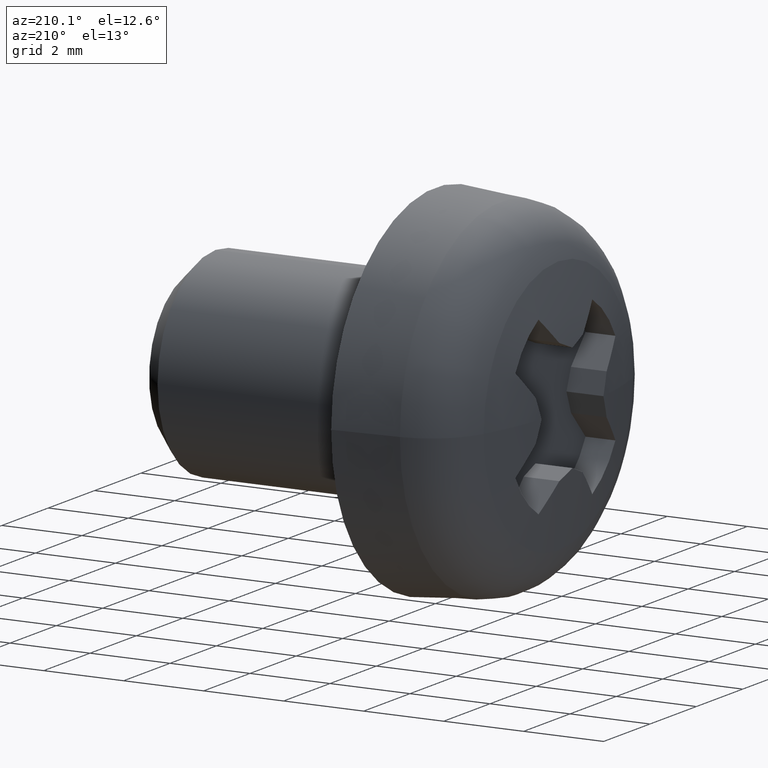
[diagram: clean part render]
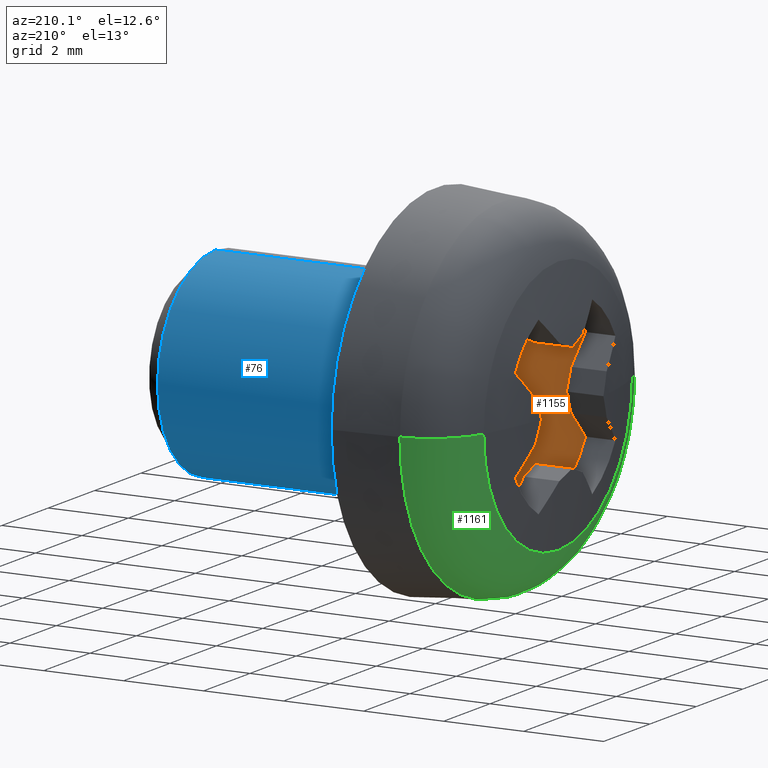
[diagram: same view with three faces highlighted in distinct colors, each labeled with its STEP entity id]
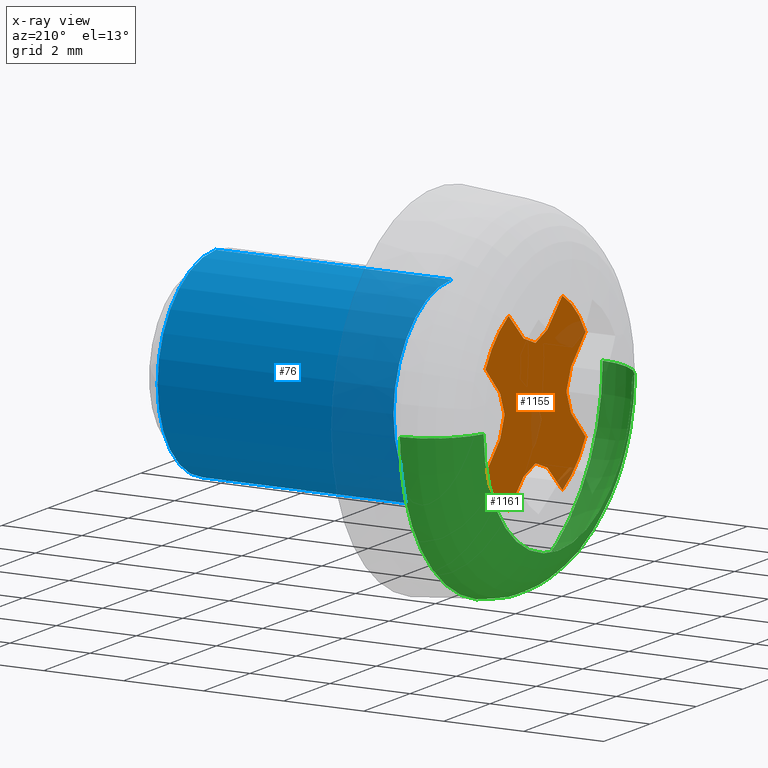
[diagram: x-ray of the same camera — body ghosted, the three highlighted faces saturated]
A machine part, auxiliary view with three faces highlighted in distinct colors.
The next image is the same camera in x-ray (body ghosted, the three faces saturated) — at least one of them is partly hidden behind the body in this view.
Their STEP definitions:

[orange] entity #1155 — the highlighted planar face has unit normal (1, 0, 0).
#1 = CARTESIAN_POINT ( 'NONE',  ( -2.500000000000000000, 1.159479238436129700, 2.158265019787024100 ) ) ;
#16 = ORIENTED_EDGE ( 'NONE', *, *, #48, .F. ) ;
#18 = VECTOR ( 'NONE', #199, 1000.000000000000100 ) ;
#28 = DIRECTION ( 'NONE',  ( 0.0000000000000000000, 0.0000000000000000000, -1.000000000000000000 ) ) ;
#31 = EDGE_CURVE ( 'NONE', #280, #181, #688, .T. ) ;
#32 = EDGE_CURVE ( 'NONE', #1241, #542, #1225, .T. ) ;
#48 = EDGE_CURVE ( 'NONE', #994, #922, #1189, .T. ) ;
#51 = CARTESIAN_POINT ( 'NONE',  ( -2.500000000000000000, -0.5093083929227741900, -1.530402332565709200 ) ) ;
#62 = CIRCLE ( 'NONE', #198, 2.450000000000145400 ) ;
#78 = VERTEX_POINT ( 'NONE', #88 ) ;
#88 = CARTESIAN_POINT ( 'NONE',  ( -2.500000000000000000, -1.159479238436081700, 2.158265019787049900 ) ) ;
#94 = ORIENTED_EDGE ( 'NONE', *, *, #232, .F. ) ;
#96 = DIRECTION ( 'NONE',  ( 0.0000000000000000000, -0.9335804264972001900, 0.3583679495453044300 ) ) ;
#100 = CARTESIAN_POINT ( 'NONE',  ( -2.500000000000000000, 1.334897157780971000, -4.235164736271501700E-019 ) ) ;
#113 = EDGE_CURVE ( 'NONE', #841, #78, #657, .T. ) ;
#126 = LINE ( 'NONE', #291, #1139 ) ;
#128 = DIRECTION ( 'NONE',  ( 0.0000000000000000000, 0.9335804264972001900, -0.3583679495453044300 ) ) ;
#137 = EDGE_LOOP ( 'NONE', ( #554, #1031, #491, #997, #1228, #16, #877, #331, #1138, #1147, #976, #744, #397, #348, #1181, #874, #216, #1195, #223, #94 ) ) ;
#145 = CARTESIAN_POINT ( 'NONE',  ( -2.500000000000000000, 0.5093083929209955000, -1.530402332566300800 ) ) ;
#147 = VECTOR ( 'NONE', #584, 1000.000000000000000 ) ;
#148 = CARTESIAN_POINT ( 'NONE',  ( -2.500000000000000000, 0.0000000000000000000, -0.0000000000000000000 ) ) ;
#152 = CARTESIAN_POINT ( 'NONE',  ( -2.500000000000000000, 0.5093083929209955000, -1.530402332566300800 ) ) ;
#181 = VERTEX_POINT ( 'NONE', #51 ) ;
#198 = AXIS2_PLACEMENT_3D ( 'NONE', #148, #823, #249 ) ;
#199 = DIRECTION ( 'NONE',  ( -0.0000000000000000000, -0.6946583704602968800, 0.7193398003373960800 ) ) ;
#211 = CARTESIAN_POINT ( 'NONE',  ( -2.500000000000000000, -0.5093083929227741900, -1.530402332565709200 ) ) ;
#216 = ORIENTED_EDGE ( 'NONE', *, *, #450, .F. ) ;
#217 = CARTESIAN_POINT ( 'NONE',  ( -2.500000000000000000, 2.158265019787062300, 1.159479238436059300 ) ) ;
#223 = ORIENTED_EDGE ( 'NONE', *, *, #592, .F. ) ;
#227 = VECTOR ( 'NONE', #253, 1000.000000000000100 ) ;
#228 = DIRECTION ( 'NONE',  ( 1.000000000000000000, 0.0000000000000000000, 0.0000000000000000000 ) ) ;
#232 = EDGE_CURVE ( 'NONE', #542, #752, #1261, .T. ) ;
#249 = DIRECTION ( 'NONE',  ( 0.0000000000000000000, -1.000000000000000000, 3.491481338843133400E-015 ) ) ;
#253 = DIRECTION ( 'NONE',  ( 0.0000000000000000000, 0.7193398003386477500, -0.6946583704590007000 ) ) ;
#271 = LINE ( 'NONE', #870, #18 ) ;
#280 = VERTEX_POINT ( 'NONE', #591 ) ;
#282 = CARTESIAN_POINT ( 'NONE',  ( -2.500000000000000000, -1.334897157780971000, 4.235164736271501700E-019 ) ) ;
#283 = EDGE_CURVE ( 'NONE', #181, #1241, #429, .T. ) ;
#291 = CARTESIAN_POINT ( 'NONE',  ( -2.500000000000000000, -1.530402332566302500, -0.5093083929209901700 ) ) ;
#307 = LINE ( 'NONE', #1182, #1054 ) ;
#319 = DIRECTION ( 'NONE',  ( 0.0000000000000000000, 1.000000000000000000, -1.047444401652939800E-014 ) ) ;
#321 = DIRECTION ( 'NONE',  ( 0.0000000000000000000, 0.7193398003373985300, 0.6946583704602944400 ) ) ;
#331 = ORIENTED_EDGE ( 'NONE', *, *, #658, .F. ) ;
#348 = ORIENTED_EDGE ( 'NONE', *, *, #1254, .F. ) ;
#365 = AXIS2_PLACEMENT_3D ( 'NONE', #1024, #666, #854 ) ;
#369 = EDGE_CURVE ( 'NONE', #665, #994, #494, .T. ) ;
#378 = CARTESIAN_POINT ( 'NONE',  ( -2.500000000000000000, -1.530402332565711000, 0.5093083929227688600 ) ) ;
#379 = VERTEX_POINT ( 'NONE', #975 ) ;
#393 = DIRECTION ( 'NONE',  ( -0.0000000000000000000, -0.3583679495453049300, 0.9335804264971999700 ) ) ;
#397 = ORIENTED_EDGE ( 'NONE', *, *, #1239, .F. ) ;
#399 = CARTESIAN_POINT ( 'NONE',  ( -2.500000000000000000, -4.661192032140625300E-015, -1.334897157780971000 ) ) ;
#417 = CARTESIAN_POINT ( 'NONE',  ( -2.500000000000000000, 0.0000000000000000000, 0.0000000000000000000 ) ) ;
#427 = CARTESIAN_POINT ( 'NONE',  ( -2.500000000000000000, 0.0000000000000000000, 0.0000000000000000000 ) ) ;
#429 = LINE ( 'NONE', #399, #647 ) ;
#443 = DIRECTION ( 'NONE',  ( 0.0000000000000000000, -0.9335804264972037400, -0.3583679495452951600 ) ) ;
#446 = CARTESIAN_POINT ( 'NONE',  ( -2.500000000000000000, -1.334897157782241900, 4.497275487811942400E-015 ) ) ;
#450 = EDGE_CURVE ( 'NONE', #379, #1157, #1247, .T. ) ;
#452 = EDGE_CURVE ( 'NONE', #1178, #962, #933, .T. ) ;
#453 = EDGE_CURVE ( 'NONE', #784, #841, #1187, .T. ) ;
#455 = VECTOR ( 'NONE', #1202, 1000.000000000000000 ) ;
#459 = VERTEX_POINT ( 'NONE', #1180 ) ;
#491 = ORIENTED_EDGE ( 'NONE', *, *, #31, .F. ) ;
#493 = CARTESIAN_POINT ( 'NONE',  ( -2.500000000000000000, -1.634930278594939400E-016, 1.334897157782241900 ) ) ;
#494 = LINE ( 'NONE', #282, #1023 ) ;
#506 = CARTESIAN_POINT ( 'NONE',  ( -2.500000000000000000, -1.530402332565711000, 0.5093083929227688600 ) ) ;
#507 = PLANE ( 'NONE',  #365 ) ;
#517 = CARTESIAN_POINT ( 'NONE',  ( -2.500000000000000000, 0.0000000000000000000, 0.0000000000000000000 ) ) ;
#542 = VERTEX_POINT ( 'NONE', #145 ) ;
#554 = ORIENTED_EDGE ( 'NONE', *, *, #32, .F. ) ;
#560 = CIRCLE ( 'NONE', #663, 2.450000000000145400 ) ;
#561 = VECTOR ( 'NONE', #1173, 1000.000000000000100 ) ;
#584 = DIRECTION ( 'NONE',  ( 0.0000000000000000000, 0.6946583704590083600, 0.7193398003386405300 ) ) ;
#591 = CARTESIAN_POINT ( 'NONE',  ( -2.500000000000000000, -1.159479238436114800, -2.158265019787032100 ) ) ;
#592 = EDGE_CURVE ( 'NONE', #752, #1108, #560, .T. ) ;
#610 = DIRECTION ( 'NONE',  ( 1.000000000000000000, 0.0000000000000000000, 0.0000000000000000000 ) ) ;
#644 = VERTEX_POINT ( 'NONE', #1268 ) ;
#647 = VECTOR ( 'NONE', #831, 1000.000000000000000 ) ;
#655 = VECTOR ( 'NONE', #393, 1000.000000000000000 ) ;
#657 = LINE ( 'NONE', #792, #561 ) ;
#658 = EDGE_CURVE ( 'NONE', #644, #665, #1140, .T. ) ;
#663 = AXIS2_PLACEMENT_3D ( 'NONE', #517, #610, #28 ) ;
#665 = VERTEX_POINT ( 'NONE', #506 ) ;
#666 = DIRECTION ( 'NONE',  ( 1.000000000000000000, 0.0000000000000000000, 0.0000000000000000000 ) ) ;
#688 = LINE ( 'NONE', #211, #958 ) ;
#701 = CARTESIAN_POINT ( 'NONE',  ( -2.500000000000000000, -1.634930278594939400E-016, 1.334897157782241900 ) ) ;
#728 = CARTESIAN_POINT ( 'NONE',  ( -2.500000000000000000, 1.398272906347462200E-014, 1.334897157780971000 ) ) ;
#738 = CIRCLE ( 'NONE', #900, 2.450000000000145400 ) ;
#744 = ORIENTED_EDGE ( 'NONE', *, *, #970, .F. ) ;
#752 = VERTEX_POINT ( 'NONE', #782 ) ;
#754 = CARTESIAN_POINT ( 'NONE',  ( -2.500000000000000000, 1.530402332566306300, 0.5093083929209795100 ) ) ;
#763 = EDGE_CURVE ( 'NONE', #1157, #1178, #966, .T. ) ;
#775 = VECTOR ( 'NONE', #443, 1000.000000000000000 ) ;
#780 = AXIS2_PLACEMENT_3D ( 'NONE', #417, #228, #799 ) ;
#782 = CARTESIAN_POINT ( 'NONE',  ( -2.500000000000000000, 1.159479238436081700, -2.158265019787049900 ) ) ;
#784 = VERTEX_POINT ( 'NONE', #701 ) ;
#792 = CARTESIAN_POINT ( 'NONE',  ( -2.500000000000000000, -0.5093083929209955000, 1.530402332566300800 ) ) ;
#799 = DIRECTION ( 'NONE',  ( 0.0000000000000000000, 0.0000000000000000000, 1.000000000000000000 ) ) ;
#812 = LINE ( 'NONE', #728, #775 ) ;
#823 = DIRECTION ( 'NONE',  ( 1.000000000000000000, 0.0000000000000000000, 0.0000000000000000000 ) ) ;
#831 = DIRECTION ( 'NONE',  ( 0.0000000000000000000, 0.9335804264972011900, 0.3583679495453016600 ) ) ;
#841 = VERTEX_POINT ( 'NONE', #1028 ) ;
#845 = EDGE_CURVE ( 'NONE', #922, #1265, #126, .T. ) ;
#854 = DIRECTION ( 'NONE',  ( 0.0000000000000000000, 0.0000000000000000000, -1.000000000000000000 ) ) ;
#863 = DIRECTION ( 'NONE',  ( 0.0000000000000000000, 0.3583679495453049300, -0.9335804264971999700 ) ) ;
#866 = VECTOR ( 'NONE', #901, 1000.000000000000100 ) ;
#868 = CARTESIAN_POINT ( 'NONE',  ( -2.500000000000000000, 2.158265019787036100, -1.159479238436107200 ) ) ;
#870 = CARTESIAN_POINT ( 'NONE',  ( -2.500000000000000000, 1.530402332565711000, -0.5093083929227688600 ) ) ;
#874 = ORIENTED_EDGE ( 'NONE', *, *, #763, .F. ) ;
#877 = ORIENTED_EDGE ( 'NONE', *, *, #369, .F. ) ;
#892 = VECTOR ( 'NONE', #96, 1000.000000000000000 ) ;
#900 = AXIS2_PLACEMENT_3D ( 'NONE', #427, #1015, #319 ) ;
#901 = DIRECTION ( 'NONE',  ( 0.0000000000000000000, 0.6946583704602968800, -0.7193398003373960800 ) ) ;
#922 = VERTEX_POINT ( 'NONE', #1000 ) ;
#933 = LINE ( 'NONE', #1077, #147 ) ;
#934 = VECTOR ( 'NONE', #128, 1000.000000000000000 ) ;
#958 = VECTOR ( 'NONE', #321, 1000.000000000000000 ) ;
#962 = VERTEX_POINT ( 'NONE', #217 ) ;
#966 = LINE ( 'NONE', #1263, #455 ) ;
#969 = EDGE_CURVE ( 'NONE', #1265, #280, #62, .T. ) ;
#970 = EDGE_CURVE ( 'NONE', #459, #784, #812, .T. ) ;
#975 = CARTESIAN_POINT ( 'NONE',  ( -2.500000000000000000, 1.530402332565711000, -0.5093083929227688600 ) ) ;
#976 = ORIENTED_EDGE ( 'NONE', *, *, #453, .F. ) ;
#994 = VERTEX_POINT ( 'NONE', #446 ) ;
#995 = CARTESIAN_POINT ( 'NONE',  ( -2.500000000000000000, 1.634930278594939400E-016, -1.334897157782241900 ) ) ;
#997 = ORIENTED_EDGE ( 'NONE', *, *, #969, .F. ) ;
#1000 = CARTESIAN_POINT ( 'NONE',  ( -2.500000000000000000, -1.530402332566302500, -0.5093083929209901700 ) ) ;
#1015 = DIRECTION ( 'NONE',  ( 1.000000000000000000, 0.0000000000000000000, 0.0000000000000000000 ) ) ;
#1022 = CIRCLE ( 'NONE', #780, 2.450000000000145400 ) ;
#1023 = VECTOR ( 'NONE', #863, 1000.000000000000000 ) ;
#1024 = CARTESIAN_POINT ( 'NONE',  ( -2.500000000000000000, 0.0000000000000000000, 0.0000000000000000000 ) ) ;
#1028 = CARTESIAN_POINT ( 'NONE',  ( -2.500000000000000000, -0.5093083929209955000, 1.530402332566300800 ) ) ;
#1031 = ORIENTED_EDGE ( 'NONE', *, *, #283, .F. ) ;
#1054 = VECTOR ( 'NONE', #1193, 1000.000000000000100 ) ;
#1055 = EDGE_CURVE ( 'NONE', #78, #644, #1022, .T. ) ;
#1070 = CARTESIAN_POINT ( 'NONE',  ( -2.500000000000000000, 1.334897157780971000, -4.235164736271501700E-019 ) ) ;
#1077 = CARTESIAN_POINT ( 'NONE',  ( -2.500000000000000000, 1.530402332566306300, 0.5093083929209795100 ) ) ;
#1108 = VERTEX_POINT ( 'NONE', #868 ) ;
#1135 = VERTEX_POINT ( 'NONE', #1 ) ;
#1138 = ORIENTED_EDGE ( 'NONE', *, *, #1055, .F. ) ;
#1139 = VECTOR ( 'NONE', #1270, 1000.000000000000100 ) ;
#1140 = LINE ( 'NONE', #378, #866 ) ;
#1147 = ORIENTED_EDGE ( 'NONE', *, *, #113, .F. ) ;
#1149 = FACE_OUTER_BOUND ( 'NONE', #137, .T. ) ;
#1152 = VECTOR ( 'NONE', #1210, 1000.000000000000000 ) ;
#1155 = ADVANCED_FACE ( 'NONE', ( #1149 ), #507, .F. ) ;
#1157 = VERTEX_POINT ( 'NONE', #1070 ) ;
#1159 = CARTESIAN_POINT ( 'NONE',  ( -2.500000000000000000, -4.661192032140625300E-015, -1.334897157780971000 ) ) ;
#1173 = DIRECTION ( 'NONE',  ( 0.0000000000000000000, -0.7193398003386477500, 0.6946583704590007000 ) ) ;
#1178 = VERTEX_POINT ( 'NONE', #754 ) ;
#1180 = CARTESIAN_POINT ( 'NONE',  ( -2.500000000000000000, 0.5093083929227848500, 1.530402332565705700 ) ) ;
#1181 = ORIENTED_EDGE ( 'NONE', *, *, #452, .F. ) ;
#1182 = CARTESIAN_POINT ( 'NONE',  ( -2.500000000000000000, 0.5093083929227848500, 1.530402332565705700 ) ) ;
#1187 = LINE ( 'NONE', #493, #892 ) ;
#1189 = LINE ( 'NONE', #1272, #1152 ) ;
#1193 = DIRECTION ( 'NONE',  ( 0.0000000000000000000, -0.7193398003374033000, -0.6946583704602893300 ) ) ;
#1195 = ORIENTED_EDGE ( 'NONE', *, *, #1238, .F. ) ;
#1202 = DIRECTION ( 'NONE',  ( 0.0000000000000000000, 0.3583679495453142000, 0.9335804264971964100 ) ) ;
#1210 = DIRECTION ( 'NONE',  ( 0.0000000000000000000, -0.3583679495453077100, -0.9335804264971989700 ) ) ;
#1211 = CARTESIAN_POINT ( 'NONE',  ( -2.500000000000000000, -2.158265019787053900, -1.159479238436074100 ) ) ;
#1225 = LINE ( 'NONE', #995, #934 ) ;
#1228 = ORIENTED_EDGE ( 'NONE', *, *, #845, .F. ) ;
#1238 = EDGE_CURVE ( 'NONE', #1108, #379, #271, .T. ) ;
#1239 = EDGE_CURVE ( 'NONE', #1135, #459, #307, .T. ) ;
#1241 = VERTEX_POINT ( 'NONE', #1159 ) ;
#1247 = LINE ( 'NONE', #100, #655 ) ;
#1254 = EDGE_CURVE ( 'NONE', #962, #1135, #738, .T. ) ;
#1261 = LINE ( 'NONE', #152, #227 ) ;
#1263 = CARTESIAN_POINT ( 'NONE',  ( -2.500000000000000000, 1.334897157782241900, -1.381881251915481200E-014 ) ) ;
#1265 = VERTEX_POINT ( 'NONE', #1211 ) ;
#1268 = CARTESIAN_POINT ( 'NONE',  ( -2.500000000000000000, -2.158265019787036100, 1.159479238436107200 ) ) ;
#1270 = DIRECTION ( 'NONE',  ( 0.0000000000000000000, -0.6946583704590032500, -0.7193398003386453100 ) ) ;
#1272 = CARTESIAN_POINT ( 'NONE',  ( -2.500000000000000000, -1.334897157782241900, 4.497275487811942400E-015 ) ) ;

[blue] entity #76 — the highlighted cylindrical surface (partial cylindrical patch) has radius 2.5 mm, axis along (-1, -0, -0).
#7 = ORIENTED_EDGE ( 'NONE', *, *, #788, .T. ) ;
#76 = ADVANCED_FACE ( 'NONE', ( #107 ), #603, .T. ) ;
#98 = DIRECTION ( 'NONE',  ( 1.000000000000000000, 0.0000000000000000000, 0.0000000000000000000 ) ) ;
#103 = LINE ( 'NONE', #971, #827 ) ;
#107 = FACE_OUTER_BOUND ( 'NONE', #370, .T. ) ;
#168 = ORIENTED_EDGE ( 'NONE', *, *, #791, .T. ) ;
#243 = CARTESIAN_POINT ( 'NONE',  ( 6.000000000000000000, 0.0000000000000000000, 2.500000000000000000 ) ) ;
#320 = CARTESIAN_POINT ( 'NONE',  ( 5.500000000000000000, 0.0000000000000000000, 0.0000000000000000000 ) ) ;
#322 = DIRECTION ( 'NONE',  ( -1.000000000000000000, 0.0000000000000000000, 0.0000000000000000000 ) ) ;
#334 = CARTESIAN_POINT ( 'NONE',  ( 6.000000000000000000, 0.0000000000000000000, 0.0000000000000000000 ) ) ;
#370 = EDGE_LOOP ( 'NONE', ( #7, #1249, #168, #434 ) ) ;
#380 = VERTEX_POINT ( 'NONE', #771 ) ;
#408 = DIRECTION ( 'NONE',  ( -1.000000000000000000, -0.0000000000000000000, -0.0000000000000000000 ) ) ;
#425 = CIRCLE ( 'NONE', #485, 2.500000000000000000 ) ;
#434 = ORIENTED_EDGE ( 'NONE', *, *, #564, .F. ) ;
#485 = AXIS2_PLACEMENT_3D ( 'NONE', #320, #322, #1009 ) ;
#564 = EDGE_CURVE ( 'NONE', #833, #965, #1094, .T. ) ;
#575 = DIRECTION ( 'NONE',  ( 0.0000000000000000000, 0.0000000000000000000, 1.000000000000000000 ) ) ;
#603 = CYLINDRICAL_SURFACE ( 'NONE', #1227, 2.500000000000000000 ) ;
#616 = AXIS2_PLACEMENT_3D ( 'NONE', #1206, #98, #895 ) ;
#628 = VERTEX_POINT ( 'NONE', #709 ) ;
#668 = CIRCLE ( 'NONE', #616, 2.500000000000000000 ) ;
#693 = CARTESIAN_POINT ( 'NONE',  ( -0.4000000000000000200, 0.0000000000000000000, 2.500000000000000000 ) ) ;
#709 = CARTESIAN_POINT ( 'NONE',  ( 5.500000000000000000, 3.061616997868383100E-016, -2.500000000000000000 ) ) ;
#767 = CARTESIAN_POINT ( 'NONE',  ( 5.500000000000000000, 0.0000000000000000000, 2.500000000000000000 ) ) ;
#771 = CARTESIAN_POINT ( 'NONE',  ( -0.4000000000000000200, 3.061616997868383100E-016, -2.500000000000000000 ) ) ;
#788 = EDGE_CURVE ( 'NONE', #833, #628, #425, .T. ) ;
#791 = EDGE_CURVE ( 'NONE', #380, #965, #668, .T. ) ;
#816 = DIRECTION ( 'NONE',  ( -1.000000000000000000, -0.0000000000000000000, -0.0000000000000000000 ) ) ;
#827 = VECTOR ( 'NONE', #1045, 1000.000000000000000 ) ;
#833 = VERTEX_POINT ( 'NONE', #767 ) ;
#848 = VECTOR ( 'NONE', #816, 1000.000000000000000 ) ;
#895 = DIRECTION ( 'NONE',  ( 0.0000000000000000000, 0.0000000000000000000, -1.000000000000000000 ) ) ;
#965 = VERTEX_POINT ( 'NONE', #693 ) ;
#971 = CARTESIAN_POINT ( 'NONE',  ( 6.000000000000000000, 3.061616997868383100E-016, -2.500000000000000000 ) ) ;
#1009 = DIRECTION ( 'NONE',  ( 0.0000000000000000000, 0.0000000000000000000, -1.000000000000000000 ) ) ;
#1045 = DIRECTION ( 'NONE',  ( -1.000000000000000000, -0.0000000000000000000, -0.0000000000000000000 ) ) ;
#1094 = LINE ( 'NONE', #243, #848 ) ;
#1192 = EDGE_CURVE ( 'NONE', #628, #380, #103, .T. ) ;
#1206 = CARTESIAN_POINT ( 'NONE',  ( -0.4000000000000000200, 0.0000000000000000000, 0.0000000000000000000 ) ) ;
#1227 = AXIS2_PLACEMENT_3D ( 'NONE', #334, #408, #575 ) ;
#1249 = ORIENTED_EDGE ( 'NONE', *, *, #1192, .T. ) ;

[green] entity #1161 — the highlighted toroidal blend (fillet) surface has major radius 2.7782 mm and minor (blend) radius 1.6 mm.
#3 = CARTESIAN_POINT ( 'NONE',  ( -3.063903015048163000, 3.205643002276122200, 0.0000000000000000000 ) ) ;
#4 = EDGE_LOOP ( 'NONE', ( #464, #948, #272, #553 ) ) ;
#70 = CIRCLE ( 'NONE', #557, 3.205643002276123100 ) ;
#209 = DIRECTION ( 'NONE',  ( -0.0000000000000000000, 0.0000000000000000000, -1.000000000000000000 ) ) ;
#221 = DIRECTION ( 'NONE',  ( -1.000000000000000000, 0.0000000000000000000, 0.0000000000000000000 ) ) ;
#262 = CARTESIAN_POINT ( 'NONE',  ( -3.063903015048163000, -7.592892126230487900E-016, 0.0000000000000000000 ) ) ;
#270 = VERTEX_POINT ( 'NONE', #932 ) ;
#272 = ORIENTED_EDGE ( 'NONE', *, *, #1026, .T. ) ;
#295 = CARTESIAN_POINT ( 'NONE',  ( -1.522049279690289600, 2.778223935304223500, 0.0000000000000000000 ) ) ;
#323 = CIRCLE ( 'NONE', #587, 1.600000000015049200 ) ;
#339 = FACE_OUTER_BOUND ( 'NONE', #4, .T. ) ;
#413 = VERTEX_POINT ( 'NONE', #3 ) ;
#447 = AXIS2_PLACEMENT_3D ( 'NONE', #571, #556, #1167 ) ;
#464 = ORIENTED_EDGE ( 'NONE', *, *, #1199, .F. ) ;
#472 = CARTESIAN_POINT ( 'NONE',  ( -3.063903015048162100, -3.205643002259138500, 3.925780441946566000E-016 ) ) ;
#487 = CARTESIAN_POINT ( 'NONE',  ( -1.522049279690288200, -2.778223935304224400, 3.402343049684881400E-016 ) ) ;
#499 = DIRECTION ( 'NONE',  ( -2.479018727737033300E-016, 1.000000000000000000, 0.0000000000000000000 ) ) ;
#553 = ORIENTED_EDGE ( 'NONE', *, *, #1252, .F. ) ;
#556 = DIRECTION ( 'NONE',  ( 1.000000000000000000, 2.478176394271778600E-016, -0.0000000000000000000 ) ) ;
#557 = AXIS2_PLACEMENT_3D ( 'NONE', #262, #1243, #648 ) ;
#571 = CARTESIAN_POINT ( 'NONE',  ( -1.522049279690288900, -4.336808689942017700E-016, 0.0000000000000000000 ) ) ;
#587 = AXIS2_PLACEMENT_3D ( 'NONE', #295, #209, #221 ) ;
#596 = CIRCLE ( 'NONE', #635, 1.600000000015049400 ) ;
#635 = AXIS2_PLACEMENT_3D ( 'NONE', #487, #1177, #1073 ) ;
#648 = DIRECTION ( 'NONE',  ( -2.705734036424346800E-016, 1.000000000000000000, 0.0000000000000000000 ) ) ;
#755 = AXIS2_PLACEMENT_3D ( 'NONE', #990, #1085, #499 ) ;
#846 = TOROIDAL_SURFACE ( 'NONE', #447, 2.778223935304224000, 1.600000000015049400 ) ;
#917 = CARTESIAN_POINT ( 'NONE',  ( -1.644733406041988500, -4.373513440437846200, 5.433459916008446800E-016 ) ) ;
#932 = CARTESIAN_POINT ( 'NONE',  ( -1.644733406041990700, 4.373513440437846200, 0.0000000000000000000 ) ) ;
#948 = ORIENTED_EDGE ( 'NONE', *, *, #1198, .T. ) ;
#990 = CARTESIAN_POINT ( 'NONE',  ( -1.644733406041989600, -4.075939501723478800E-016, 0.0000000000000000000 ) ) ;
#1026 = EDGE_CURVE ( 'NONE', #413, #270, #323, .T. ) ;
#1032 = VERTEX_POINT ( 'NONE', #917 ) ;
#1037 = CIRCLE ( 'NONE', #755, 4.373513440437846200 ) ;
#1073 = DIRECTION ( 'NONE',  ( 0.0000000000000000000, -1.000000000000000000, 1.224646799147353200E-016 ) ) ;
#1085 = DIRECTION ( 'NONE',  ( 1.000000000000000000, 2.478176394271778600E-016, -0.0000000000000000000 ) ) ;
#1160 = VERTEX_POINT ( 'NONE', #472 ) ;
#1161 = ADVANCED_FACE ( 'NONE', ( #339 ), #846, .T. ) ;
#1167 = DIRECTION ( 'NONE',  ( -2.478176394271778600E-016, 1.000000000000000000, 0.0000000000000000000 ) ) ;
#1177 = DIRECTION ( 'NONE',  ( -3.034890788967462600E-032, 1.224646799147353200E-016, 1.000000000000000000 ) ) ;
#1198 = EDGE_CURVE ( 'NONE', #1160, #413, #70, .T. ) ;
#1199 = EDGE_CURVE ( 'NONE', #1160, #1032, #596, .T. ) ;
#1243 = DIRECTION ( 'NONE',  ( 1.000000000000000000, 2.478176394271778600E-016, -0.0000000000000000000 ) ) ;
#1252 = EDGE_CURVE ( 'NONE', #1032, #270, #1037, .T. ) ;